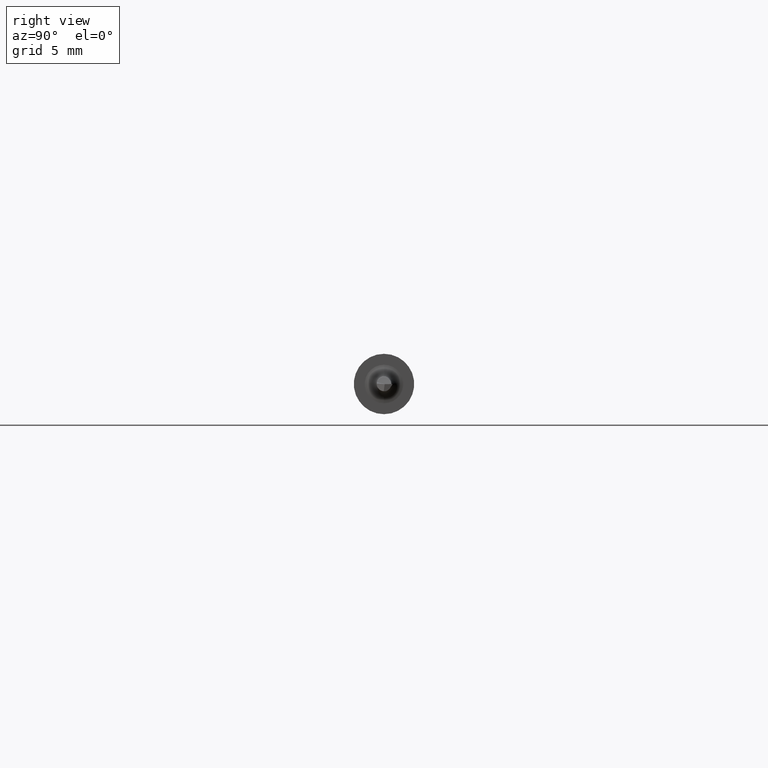
[diagram: clean part render]
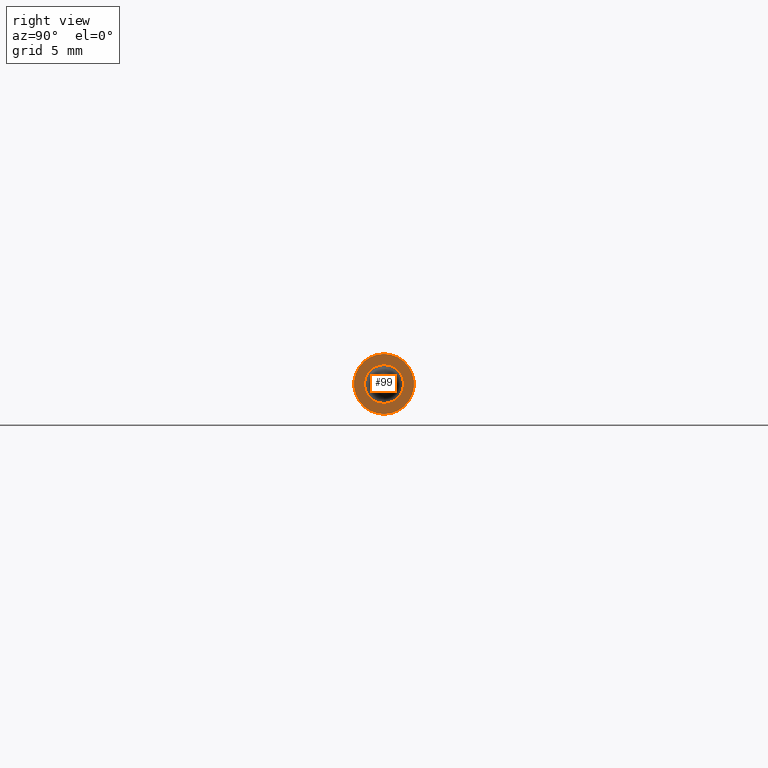
[diagram: same view with one face highlighted and labeled with its STEP entity id]
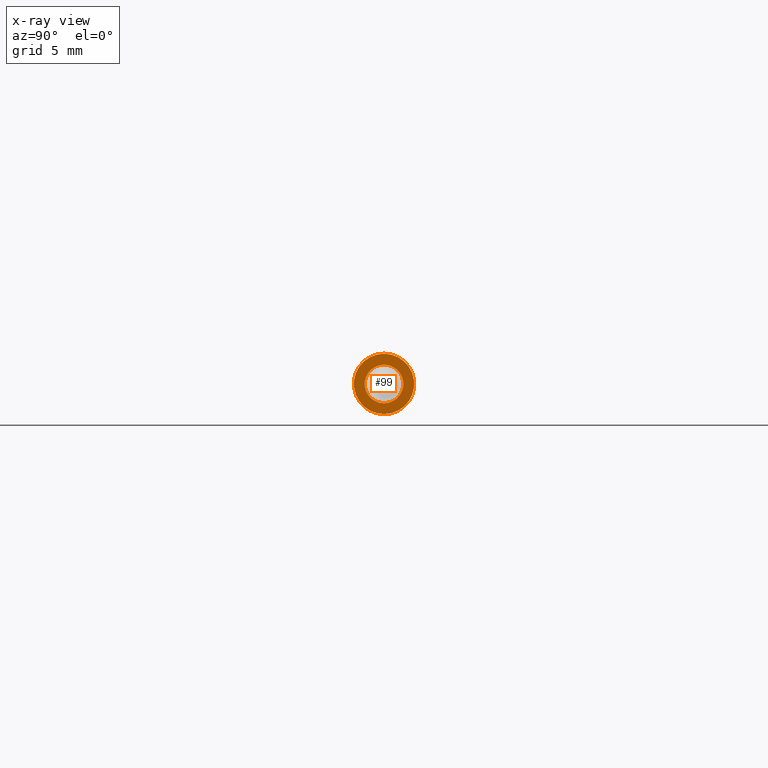
[diagram: x-ray of the same camera — body ghosted, the highlighted face saturated]
A machine part, right view. The second image highlights one B-rep face of the part: STEP entity #99.
The next image is the same camera in x-ray: the body ghosted, the highlighted face saturated — about 0% of this face is hidden behind the body in this view.
In plain terms, the highlighted planar face has unit normal (1, 0, 0).
Its self-contained STEP definition (entity closure, byte-faithful):
#30 = PLANE ( 'NONE',  #498 ) ;
#36 = CARTESIAN_POINT ( 'NONE',  ( 1.350000000000000311, 7.635672792683743590E-18, -0.06234999999999997489 ) ) ;
#44 = CARTESIAN_POINT ( 'NONE',  ( 1.350000000000000311, 4.898587196589413537E-18, -0.04000000000000000083 ) ) ;
#46 = DIRECTION ( 'NONE',  ( 0.000000000000000000, 0.000000000000000000, 1.000000000000000000 ) ) ;
#52 = CARTESIAN_POINT ( 'NONE',  ( 1.350000000000000311, 0.000000000000000000, 0.000000000000000000 ) ) ;
#67 = ORIENTED_EDGE ( 'NONE', *, *, #76, .T. ) ;
#68 = CARTESIAN_POINT ( 'NONE',  ( 1.350000000000000311, 0.000000000000000000, 0.000000000000000000 ) ) ;
#76 = EDGE_CURVE ( 'NONE', #86, #150, #298, .T. ) ;
#86 = VERTEX_POINT ( 'NONE', #36 ) ;
#91 = DIRECTION ( 'NONE',  ( 1.000000000000000000, 0.000000000000000000, 0.000000000000000000 ) ) ;
#99 = ADVANCED_FACE ( 'NONE', ( #371, #713 ), #30, .T. ) ;
#150 = VERTEX_POINT ( 'NONE', #167 ) ;
#151 = EDGE_CURVE ( 'NONE', #410, #385, #647, .T. ) ;
#167 = CARTESIAN_POINT ( 'NONE',  ( 1.350000000000000311, 0.000000000000000000, 0.06234999999999997489 ) ) ;
#184 = DIRECTION ( 'NONE',  ( 1.000000000000000000, 0.000000000000000000, 0.000000000000000000 ) ) ;
#191 = DIRECTION ( 'NONE',  ( 0.000000000000000000, 0.000000000000000000, -1.000000000000000000 ) ) ;
#203 = DIRECTION ( 'NONE',  ( 1.000000000000000000, 0.000000000000000000, 0.000000000000000000 ) ) ;
#229 = EDGE_CURVE ( 'NONE', #385, #410, #311, .T. ) ;
#233 = EDGE_CURVE ( 'NONE', #150, #86, #708, .T. ) ;
#267 = EDGE_LOOP ( 'NONE', ( #600, #67 ) ) ;
#277 = DIRECTION ( 'NONE',  ( -1.000000000000000000, -0.000000000000000000, -0.000000000000000000 ) ) ;
#296 = CARTESIAN_POINT ( 'NONE',  ( 1.350000000000000311, 0.000000000000000000, 0.000000000000000000 ) ) ;
#298 = CIRCLE ( 'NONE', #406, 0.06234999999999997489 ) ;
#304 = DIRECTION ( 'NONE',  ( 0.000000000000000000, 0.000000000000000000, 1.000000000000000000 ) ) ;
#311 = CIRCLE ( 'NONE', #370, 0.04000000000000000083 ) ;
#317 = DIRECTION ( 'NONE',  ( 0.000000000000000000, 0.000000000000000000, -1.000000000000000000 ) ) ;
#370 = AXIS2_PLACEMENT_3D ( 'NONE', #296, #412, #304 ) ;
#371 = FACE_BOUND ( 'NONE', #721, .T. ) ;
#376 = ORIENTED_EDGE ( 'NONE', *, *, #151, .T. ) ;
#385 = VERTEX_POINT ( 'NONE', #391 ) ;
#391 = CARTESIAN_POINT ( 'NONE',  ( 1.350000000000000311, 0.000000000000000000, 0.04000000000000000083 ) ) ;
#406 = AXIS2_PLACEMENT_3D ( 'NONE', #663, #203, #317 ) ;
#410 = VERTEX_POINT ( 'NONE', #44 ) ;
#412 = DIRECTION ( 'NONE',  ( -1.000000000000000000, -0.000000000000000000, -0.000000000000000000 ) ) ;
#446 = AXIS2_PLACEMENT_3D ( 'NONE', #52, #277, #46 ) ;
#471 = AXIS2_PLACEMENT_3D ( 'NONE', #68, #184, #533 ) ;
#498 = AXIS2_PLACEMENT_3D ( 'NONE', #612, #91, #191 ) ;
#533 = DIRECTION ( 'NONE',  ( 0.000000000000000000, 0.000000000000000000, -1.000000000000000000 ) ) ;
#600 = ORIENTED_EDGE ( 'NONE', *, *, #233, .T. ) ;
#612 = CARTESIAN_POINT ( 'NONE',  ( 1.350000000000000311, 0.1123499999999999638, 0.000000000000000000 ) ) ;
#647 = CIRCLE ( 'NONE', #446, 0.04000000000000000083 ) ;
#663 = CARTESIAN_POINT ( 'NONE',  ( 1.350000000000000311, 0.000000000000000000, 0.000000000000000000 ) ) ;
#702 = ORIENTED_EDGE ( 'NONE', *, *, #229, .T. ) ;
#708 = CIRCLE ( 'NONE', #471, 0.06234999999999997489 ) ;
#713 = FACE_OUTER_BOUND ( 'NONE', #267, .T. ) ;
#721 = EDGE_LOOP ( 'NONE', ( #702, #376 ) ) ;